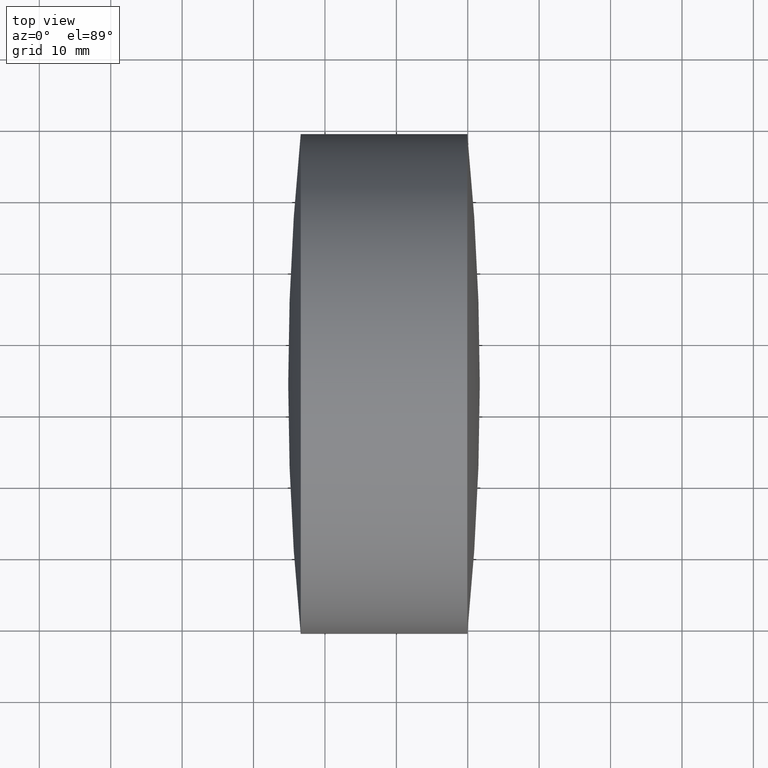
[diagram: clean part render]
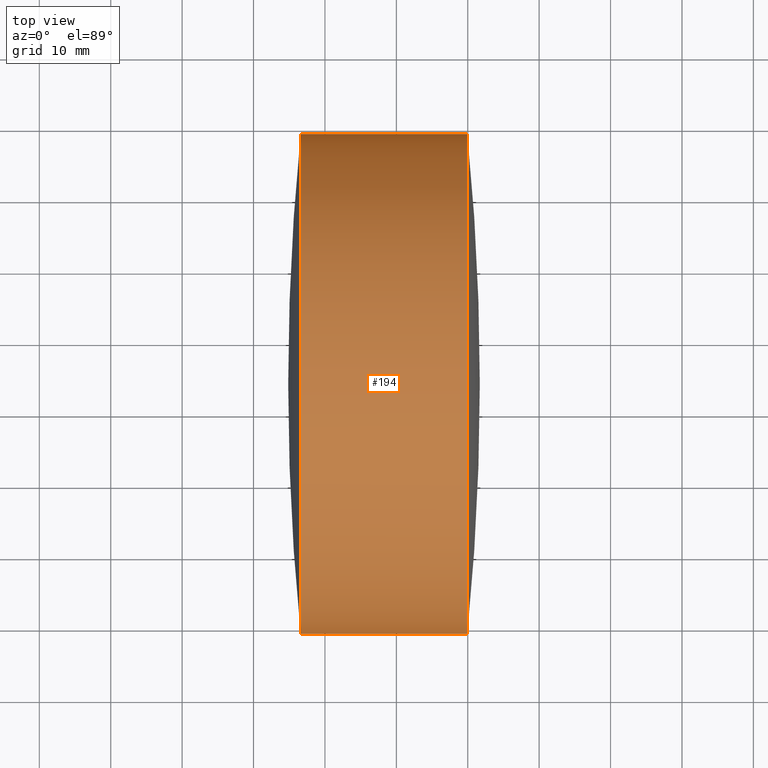
[diagram: same view with one face highlighted and labeled with its STEP entity id]
A machine part, top view. The second image highlights one B-rep face of the part: STEP entity #194.
In plain terms, the highlighted cylindrical surface (partial cylindrical patch) has radius 35 mm, axis along (-1, 0, -0).
Its self-contained STEP definition (entity closure, byte-faithful):
#1 = DIRECTION ( 'NONE',  ( -1.000000000000000000, 1.772041571645068800E-014, -0.0000000000000000000 ) ) ;
#7 = CARTESIAN_POINT ( 'NONE',  ( 226.6046127648167500, 98.98141384342911000, -4.286263797015637900E-015 ) ) ;
#21 = CARTESIAN_POINT ( 'NONE',  ( 249.9366127648179900, 168.9814138434225900, 0.0000000000000000000 ) ) ;
#34 = VERTEX_POINT ( 'NONE', #21 ) ;
#36 = LINE ( 'NONE', #92, #166 ) ;
#38 = VECTOR ( 'NONE', #175, 1000.000000000000000 ) ;
#40 = CIRCLE ( 'NONE', #176, 35.00000000000030600 ) ;
#42 = EDGE_CURVE ( 'NONE', #34, #71, #223, .T. ) ;
#65 = EDGE_CURVE ( 'NONE', #170, #199, #36, .T. ) ;
#71 = VERTEX_POINT ( 'NONE', #110 ) ;
#86 = CYLINDRICAL_SURFACE ( 'NONE', #266, 35.00000000000009900 ) ;
#92 = CARTESIAN_POINT ( 'NONE',  ( 221.4904475524727200, 98.98141384342270000, 0.0000000000000000000 ) ) ;
#99 = FACE_OUTER_BOUND ( 'NONE', #274, .T. ) ;
#110 = CARTESIAN_POINT ( 'NONE',  ( 226.6046127648180300, 168.9814138434219000, 0.0000000000000000000 ) ) ;
#125 = EDGE_CURVE ( 'NONE', #199, #71, #150, .T. ) ;
#128 = CARTESIAN_POINT ( 'NONE',  ( 221.4904475524733100, 133.9814138434227900, 0.0000000000000000000 ) ) ;
#131 = CARTESIAN_POINT ( 'NONE',  ( 249.9366127648167400, 98.98141384341606400, -4.286263797015769600E-015 ) ) ;
#150 = CIRCLE ( 'NONE', #281, 34.99999999999989300 ) ;
#154 = DIRECTION ( 'NONE',  ( -1.000000000000000000, 1.772041571645068800E-014, -0.0000000000000000000 ) ) ;
#166 = VECTOR ( 'NONE', #200, 1000.000000000000000 ) ;
#170 = VERTEX_POINT ( 'NONE', #131 ) ;
#175 = DIRECTION ( 'NONE',  ( -1.000000000000000000, 1.772041571645068800E-014, -0.0000000000000000000 ) ) ;
#176 = AXIS2_PLACEMENT_3D ( 'NONE', #290, #256, #259 ) ;
#181 = ORIENTED_EDGE ( 'NONE', *, *, #125, .F. ) ;
#194 = ADVANCED_FACE ( 'NONE', ( #99 ), #86, .T. ) ;
#197 = EDGE_CURVE ( 'NONE', #170, #34, #40, .T. ) ;
#199 = VERTEX_POINT ( 'NONE', #7 ) ;
#200 = DIRECTION ( 'NONE',  ( -1.000000000000000000, 1.772041571645068800E-014, -0.0000000000000000000 ) ) ;
#201 = CARTESIAN_POINT ( 'NONE',  ( 221.4904475524739400, 168.9814138434229000, 4.286263797015748300E-015 ) ) ;
#223 = LINE ( 'NONE', #201, #38 ) ;
#249 = ORIENTED_EDGE ( 'NONE', *, *, #65, .F. ) ;
#251 = DIRECTION ( 'NONE',  ( -1.744636181553822700E-014, -1.000000000000000000, 0.0000000000000000000 ) ) ;
#254 = CARTESIAN_POINT ( 'NONE',  ( 226.6046127648173800, 133.9814138434227000, 0.0000000000000000000 ) ) ;
#256 = DIRECTION ( 'NONE',  ( -1.000000000000000000, 1.772041571645068800E-014, -0.0000000000000000000 ) ) ;
#257 = ORIENTED_EDGE ( 'NONE', *, *, #42, .T. ) ;
#259 = DIRECTION ( 'NONE',  ( -1.744636181553802200E-014, -1.000000000000000000, 0.0000000000000000000 ) ) ;
#260 = DIRECTION ( 'NONE',  ( -1.744636181553812300E-014, -1.000000000000000000, 0.0000000000000000000 ) ) ;
#266 = AXIS2_PLACEMENT_3D ( 'NONE', #128, #154, #260 ) ;
#274 = EDGE_LOOP ( 'NONE', ( #292, #257, #181, #249 ) ) ;
#281 = AXIS2_PLACEMENT_3D ( 'NONE', #254, #1, #251 ) ;
#290 = CARTESIAN_POINT ( 'NONE',  ( 249.9366127648173700, 133.9814138434223000, 0.0000000000000000000 ) ) ;
#292 = ORIENTED_EDGE ( 'NONE', *, *, #197, .T. ) ;